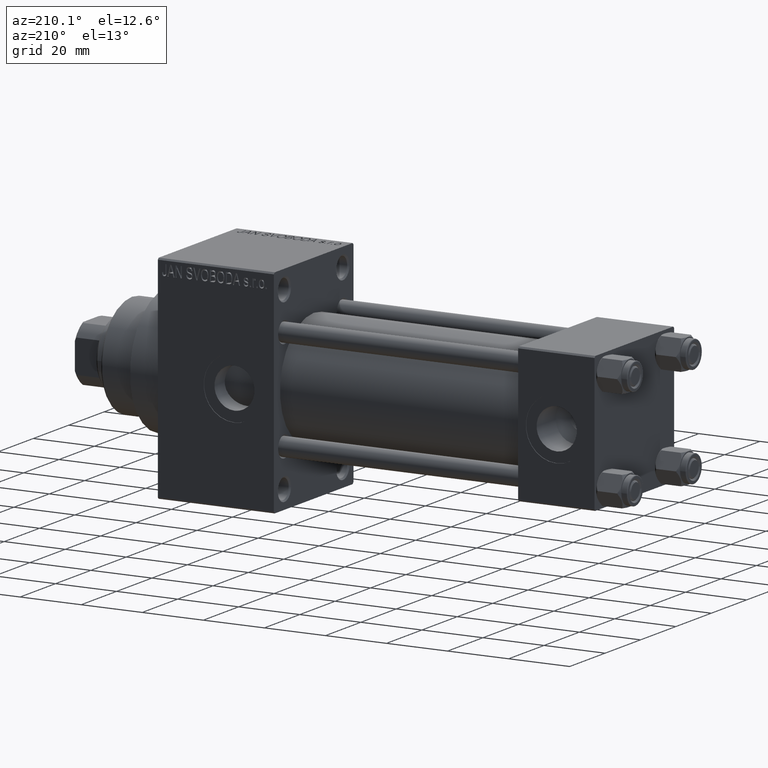
[diagram: clean part render]
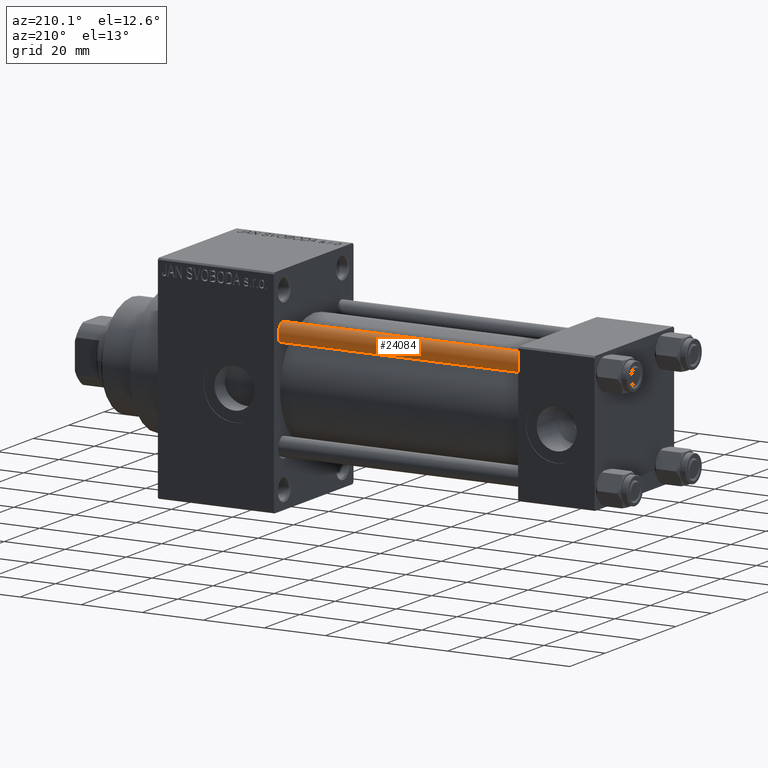
[diagram: same view with one face highlighted and labeled with its STEP entity id]
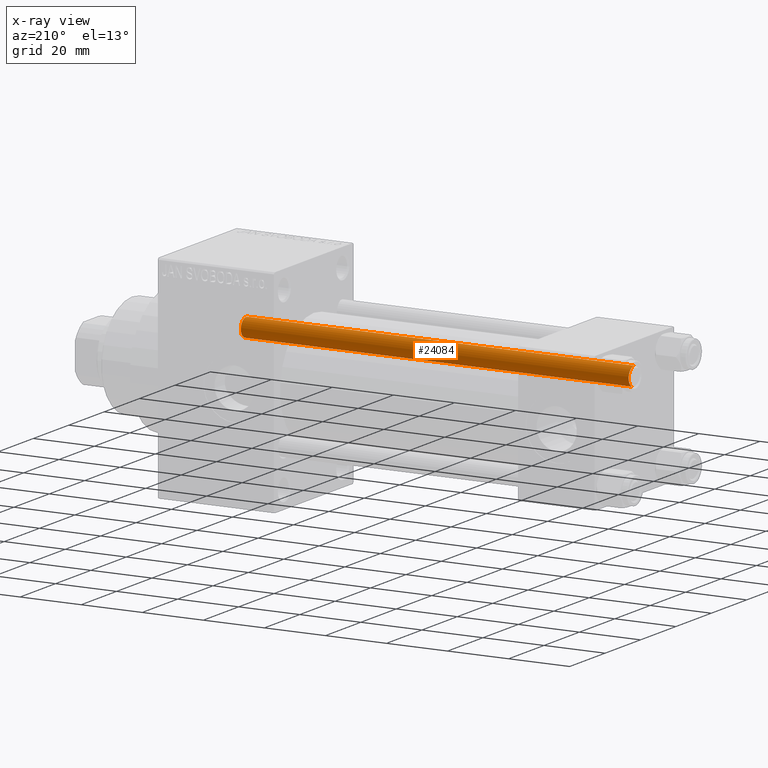
[diagram: x-ray of the same camera — body ghosted, the highlighted face saturated]
A machine part, auxiliary view. The second image highlights one B-rep face of the part: STEP entity #24084.
The next image is the same camera in x-ray: the body ghosted, the highlighted face saturated — about 0% of this face is hidden behind the body in this view.
In plain terms, the highlighted cylindrical surface (edge-blend (fillet) strip) has radius 3 mm, axis along (-1, -0, 0).
Its self-contained STEP definition (entity closure, byte-faithful):
#1101 = DIRECTION ( 'NONE',  ( -0.000000000000000000, -0.000000000000000000, -1.000000000000000000 ) ) ;
#1839 = CARTESIAN_POINT ( 'NONE',  ( 3.000000000000000444, 3.673940397442060361E-16, 128.0000000000000000 ) ) ;
#2497 = EDGE_CURVE ( 'NONE', #7246, #11462, #31672, .T. ) ;
#6216 = DIRECTION ( 'NONE',  ( 1.000000000000000000, 0.000000000000000000, 0.000000000000000000 ) ) ;
#6829 = CARTESIAN_POINT ( 'NONE',  ( 0.000000000000000000, 0.000000000000000000, 0.5000000000000281997 ) ) ;
#7246 = VERTEX_POINT ( 'NONE', #27795 ) ;
#7467 = CARTESIAN_POINT ( 'NONE',  ( 3.000000000000000444, 3.673940397442060361E-16, 0.5000000000000281997 ) ) ;
#9860 = CIRCLE ( 'NONE', #41566, 3.000000000000000444 ) ;
#11348 = VECTOR ( 'NONE', #43062, 1000.000000000000000 ) ;
#11462 = VERTEX_POINT ( 'NONE', #7467 ) ;
#12591 = CARTESIAN_POINT ( 'NONE',  ( 0.000000000000000000, 0.000000000000000000, 128.0000000000000000 ) ) ;
#16089 = FACE_OUTER_BOUND ( 'NONE', #43669, .T. ) ;
#16577 = DIRECTION ( 'NONE',  ( -0.000000000000000000, -0.000000000000000000, -1.000000000000000000 ) ) ;
#17994 = DIRECTION ( 'NONE',  ( -0.000000000000000000, -0.000000000000000000, 1.000000000000000000 ) ) ;
#20858 = DIRECTION ( 'NONE',  ( 0.000000000000000000, 0.000000000000000000, -1.000000000000000000 ) ) ;
#23484 = VERTEX_POINT ( 'NONE', #38401 ) ;
#23679 = VECTOR ( 'NONE', #1101, 1000.000000000000000 ) ;
#24084 = ADVANCED_FACE ( 'NONE', ( #16089 ), #31747, .T. ) ;
#24350 = CARTESIAN_POINT ( 'NONE',  ( 0.000000000000000000, 0.000000000000000000, 127.4999999999999716 ) ) ;
#27532 = VERTEX_POINT ( 'NONE', #43326 ) ;
#27795 = CARTESIAN_POINT ( 'NONE',  ( 3.000000000000000444, 3.673940397442060361E-16, 127.4999999999999716 ) ) ;
#27911 = CARTESIAN_POINT ( 'NONE',  ( -3.000000000000000444, 0.000000000000000000, 128.0000000000000000 ) ) ;
#30782 = DIRECTION ( 'NONE',  ( -1.000000000000000000, 0.000000000000000000, 0.000000000000000000 ) ) ;
#31232 = EDGE_CURVE ( 'NONE', #11462, #27532, #9860, .T. ) ;
#31672 = LINE ( 'NONE', #1839, #23679 ) ;
#31747 = CYLINDRICAL_SURFACE ( 'NONE', #43679, 3.000000000000000444 ) ;
#32192 = CIRCLE ( 'NONE', #48868, 3.000000000000000444 ) ;
#33164 = DIRECTION ( 'NONE',  ( 1.000000000000000000, 0.000000000000000000, 0.000000000000000000 ) ) ;
#33590 = ORIENTED_EDGE ( 'NONE', *, *, #47231, .F. ) ;
#34742 = ORIENTED_EDGE ( 'NONE', *, *, #2497, .T. ) ;
#35379 = LINE ( 'NONE', #27911, #11348 ) ;
#37569 = ORIENTED_EDGE ( 'NONE', *, *, #38695, .T. ) ;
#38401 = CARTESIAN_POINT ( 'NONE',  ( -3.000000000000000444, 0.000000000000000000, 127.4999999999999716 ) ) ;
#38695 = EDGE_CURVE ( 'NONE', #23484, #7246, #32192, .T. ) ;
#41566 = AXIS2_PLACEMENT_3D ( 'NONE', #6829, #17994, #33164 ) ;
#43062 = DIRECTION ( 'NONE',  ( -0.000000000000000000, -0.000000000000000000, -1.000000000000000000 ) ) ;
#43222 = ORIENTED_EDGE ( 'NONE', *, *, #31232, .T. ) ;
#43326 = CARTESIAN_POINT ( 'NONE',  ( -3.000000000000000444, 0.000000000000000000, 0.5000000000000281997 ) ) ;
#43669 = EDGE_LOOP ( 'NONE', ( #37569, #34742, #43222, #33590 ) ) ;
#43679 = AXIS2_PLACEMENT_3D ( 'NONE', #12591, #16577, #30782 ) ;
#47231 = EDGE_CURVE ( 'NONE', #23484, #27532, #35379, .T. ) ;
#48868 = AXIS2_PLACEMENT_3D ( 'NONE', #24350, #20858, #6216 ) ;